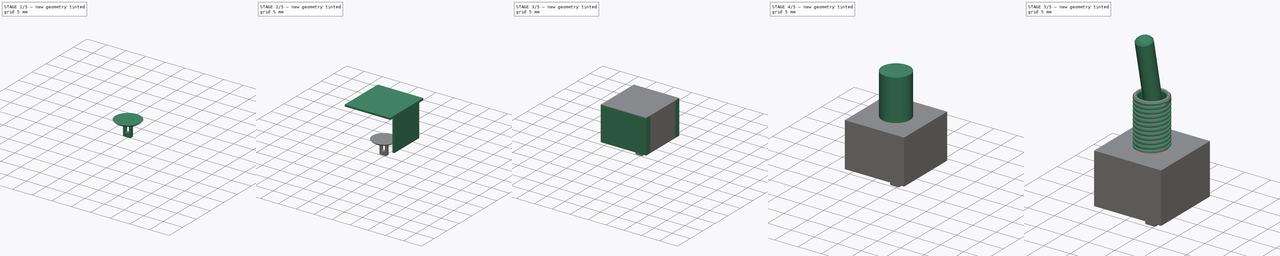
[diagram: build sequence overview — one tinted view per stage of 5, left to right]
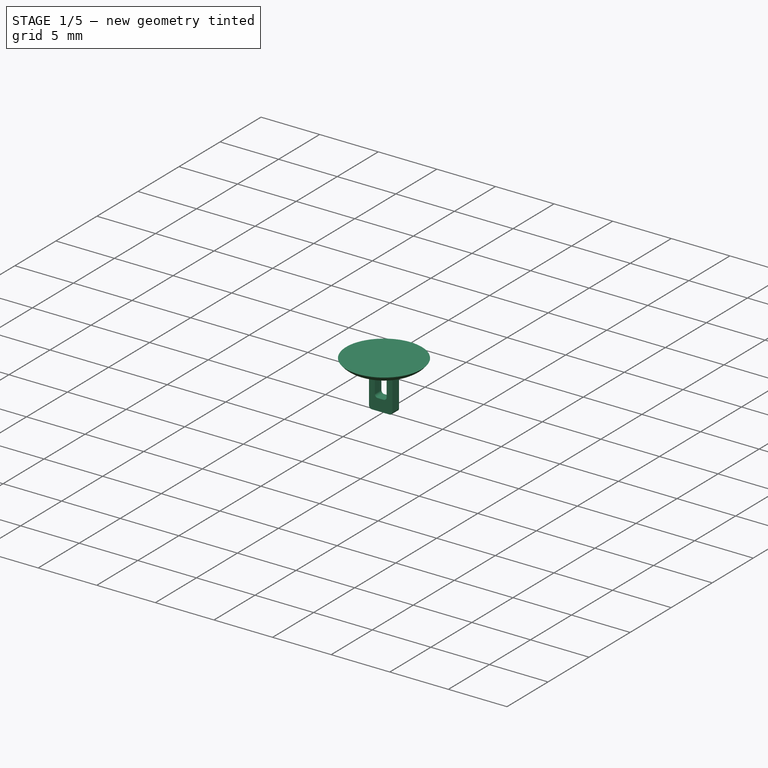
[diagram: stage 1 of 5 — iso view after this stage's code; geometry added in this stage tinted green]
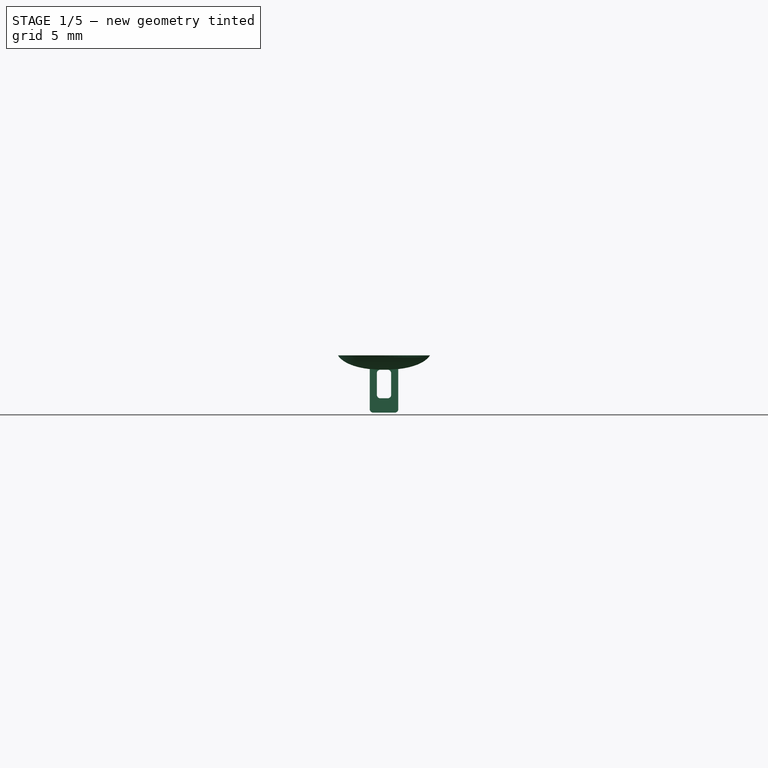
[diagram: stage 1 of 5 — front view after this stage's code; geometry added in this stage tinted green]
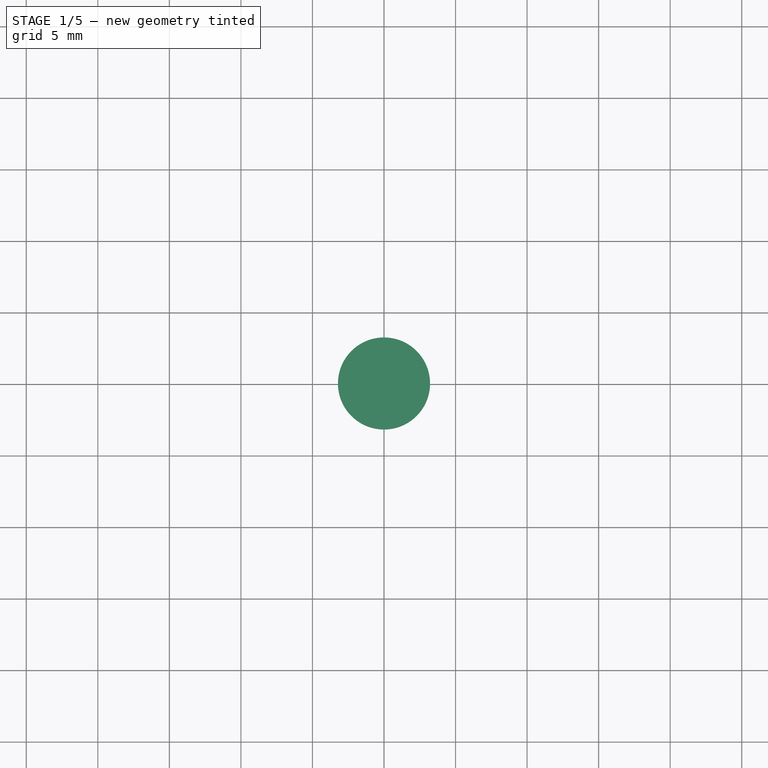
[diagram: stage 1 of 5 — top view after this stage's code; geometry added in this stage tinted green]
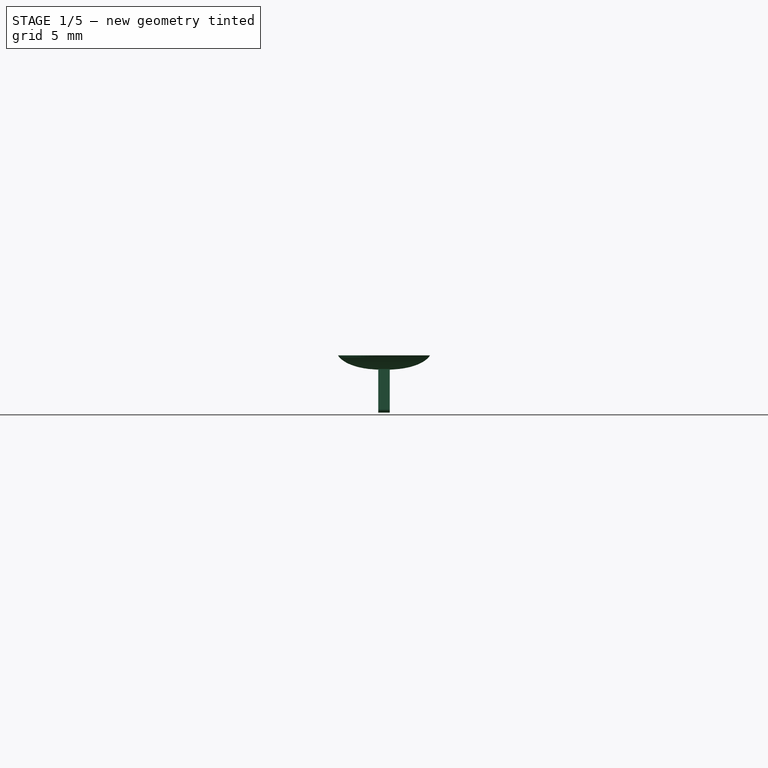
[diagram: stage 1 of 5 — right view after this stage's code; geometry added in this stage tinted green]
FCSTD DOCUMENT  (FreeCAD 0.19R16945 (Git))
Label: Daier MTS 2XX
License: All rights reserved
LicenseURL: http://en.wikipedia.org/wiki/All_rights_reserved
objects: Sketcher::SketchObject×11, PartDesign::Body×8, PartDesign::Pad×6, PartDesign::Revolution×2, PartDesign::ShapeBinder×2, PartDesign::Pocket×2, PartDesign::Mirrored×2, PartDesign::FeatureBase×2, PartDesign::Thickness×1, PartDesign::Chamfer×1, Part::Helix×1, PartDesign::SubtractivePipe×1, PartDesign::Fillet×1
note: 51 computed .brp shape members not serialized (recipe doc carries the construction recipe); baked Part::Feature solids carry a one-line shape summary decoded from their .brp

FEATURE [PartDesign::Body] Body003  label="Bracket"
  Group = -> [Sketch006,Pad002,Sketch007,Pad003,Sketch008,Pad004]
  Origin = -> Origin003
  Tip = -> Pad004
FEATURE [Sketcher::SketchObject] Sketch009
  MapMode = 5
  Placement = pos=(0,0,0) rot=(1,0,0;1.5708rad)
  Support = -> [XZ_Plane004]
  sketch-geometry (8):
    g0: LineSegment StartX=-1 StartY=0 StartZ=0 EndX=1 EndY=0 EndZ=0
    g1: LineSegment StartX=1 StartY=0 StartZ=0 EndX=1 EndY=-4 EndZ=0
    g2: LineSegment StartX=1 StartY=-4 StartZ=0 EndX=-1 EndY=-4 EndZ=0
    g3: LineSegment StartX=-1 StartY=-4 StartZ=0 EndX=-1 EndY=0 EndZ=0
    g4: LineSegment StartX=-0.5 StartY=-1 StartZ=0 EndX=0.5 EndY=-1 EndZ=0
    g5: LineSegment StartX=0.5 StartY=-1 StartZ=0 EndX=0.5 EndY=-3 EndZ=0
    g6: LineSegment StartX=0.5 StartY=-3 StartZ=0 EndX=-0.5 EndY=-3 EndZ=0
    g7: LineSegment StartX=-0.5 StartY=-3 StartZ=0 EndX=-0.5 EndY=-1 EndZ=0
  constraints (22):
    c: Coincident(g0,g1)
    c: Coincident(g1,g2)
    c: Coincident(g2,g3)
    c: Coincident(g3,g0)
    c: Horizontal(g0)
    c: Vertical(g1)
    c: Vertical(g3)
    c: PointOnObject(g0,g-1)
    c: Symmetric(g1,g2,g-2)
    c: DistanceX(g2,g2) = 2
    c: DistanceY(g1,g1) = 4
    c: Coincident(g4,g5)
    c: Coincident(g5,g6)
    c: Coincident(g6,g7)
    c: Coincident(g7,g4)
    c: Horizontal(g6)
    c: Vertical(g5)
    c: Vertical(g7)
    c: Symmetric(g4,g4,g-2)
    c: DistanceX(g6,g6) = 1
    c: DistanceY(g1,g5) = 1
    c: DistanceY(g5,g5) = 2
FEATURE [PartDesign::Pad] Pad005
  Length = 0.8
  Length2 = 100
  Midplane = true
  Placement = pos=(0,0,0) rot=(1,0,0;1.5708rad)
  Profile = -> Sketch009
  Type = 0
FEATURE [PartDesign::Fillet] Fillet002
  Base = -> Pad005 [Edge8,Edge5,Edge20,Edge14,Edge13,Edge17]
  BaseFeature = -> Pad005
  Placement = pos=(0,0,0) rot=(1,0,0;1.5708rad)
  Radius = 0.25
FEATURE [PartDesign::Body] Body005
  Group = -> [Clone]
  Origin = -> Origin005
  Placement = pos=(0,4.7,0) rot=(0,0,1;0rad)
  Tip = -> Clone
FEATURE [PartDesign::FeatureBase] Clone001
  BaseFeature = -> Body004
FEATURE [PartDesign::Body] Body006
  Group = -> [Clone001]
  Origin = -> Origin006
  Placement = pos=(0,-4.7,0) rot=(0,0,1;0rad)
  Tip = -> Clone001
FEATURE [Sketcher::SketchObject] Sketch010
  MapMode = 5
  Placement = pos=(0,0,0) rot=(1,0,0;1.5708rad)
  Support = -> [XZ_Plane007]
  sketch-geometry (11):
    g0-g4: Circle [constr] x5 (B-spline internal-alignment scaffolding for g5; pole/knot coordinates omitted)
    g5: BSplineCurve PolesCount=5 KnotsCount=3 Degree=3 IsPeriodic=0
    g6: GeomPoint [constr] X=-3.21952 Y=0 Z=0
    g7: GeomPoint [constr] X=-1.51377 Y=-0.879678 Z=0
    g8: GeomPoint [constr] X=0 Y=-1.00088 Z=0
    g9: LineSegment StartX=-3.21952 StartY=0 StartZ=0 EndX=0 EndY=0 EndZ=0
    g10: LineSegment StartX=0 StartY=0 StartZ=0 EndX=0 EndY=-1.00088 EndZ=0
  constraints (13):
    c: Radius(g0) = 0.2
    c: Equal(g0, g1-g4) x4
    c: PointOnObject(g5,g3)
    c: InternalAlignment(g0-g4 -> g5) x5
    c: InternalAlignment(g6,g5)
    c: InternalAlignment(g7,g5)
    c: InternalAlignment(g8,g5)
    c: Coincident(g9,g5)
    c: Coincident(g9,g-1)
    c: Horizontal(g9)
    c: Coincident(g10,g9)
    c: Coincident(g10,g5)
    c: Vertical(g10)
FEATURE [PartDesign::Revolution] Revolution001
  Angle = 360
  Axis = (0,2e-16,1)
  Base = (0,0,0)
  Placement = pos=(0,0,0) rot=(1,0,0;1.5708rad)
  Profile = -> Sketch010
  ReferenceAxis = -> Sketch010 [V_Axis]
FEATURE [PartDesign::Body] Body007
  Group = -> [Sketch010,Revolution001]
  Origin = -> Origin007
  Tip = -> Revolution001
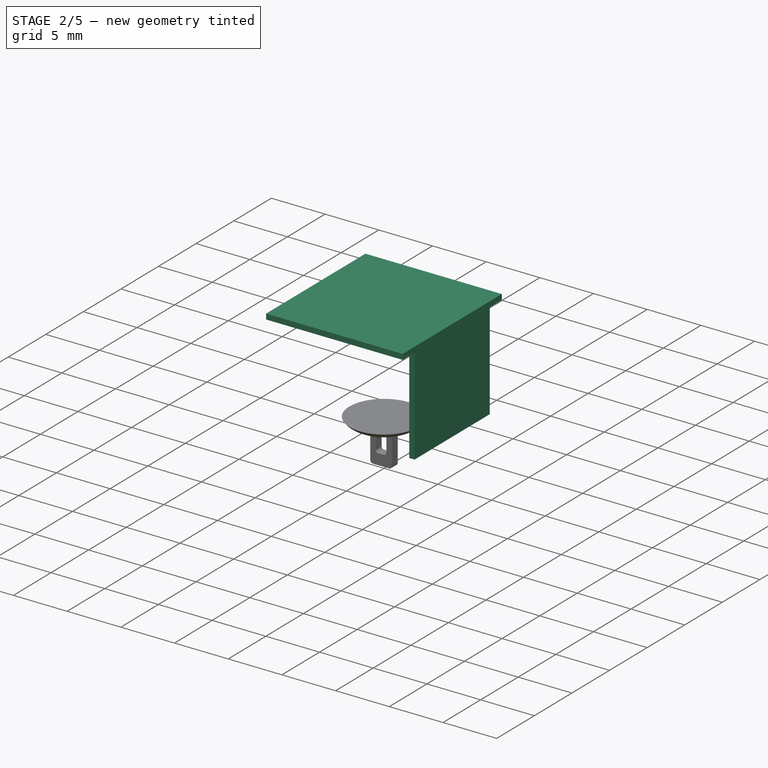
[diagram: stage 2 of 5 — iso view after this stage's code; geometry added in this stage tinted green]
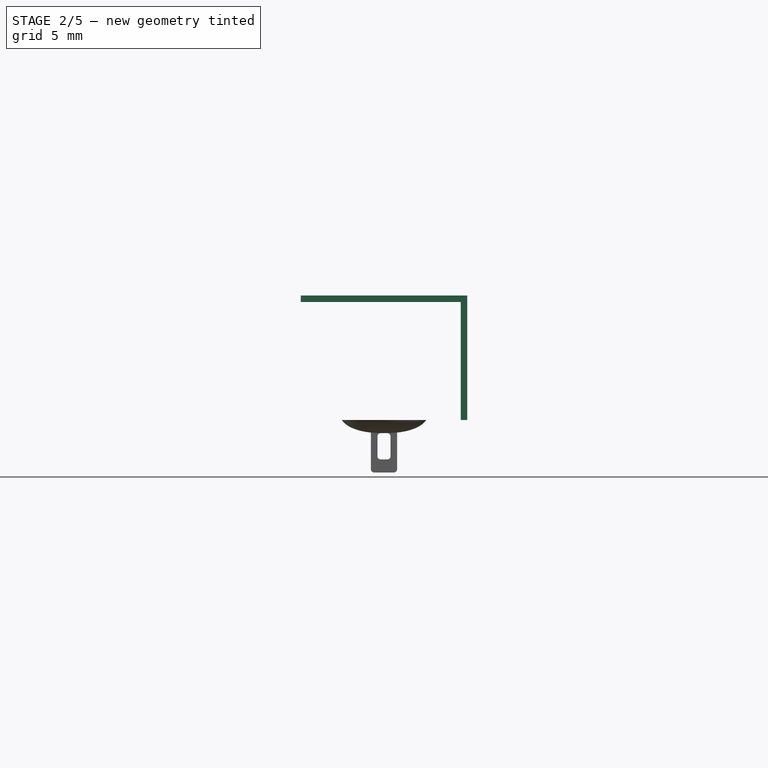
[diagram: stage 2 of 5 — front view after this stage's code; geometry added in this stage tinted green]
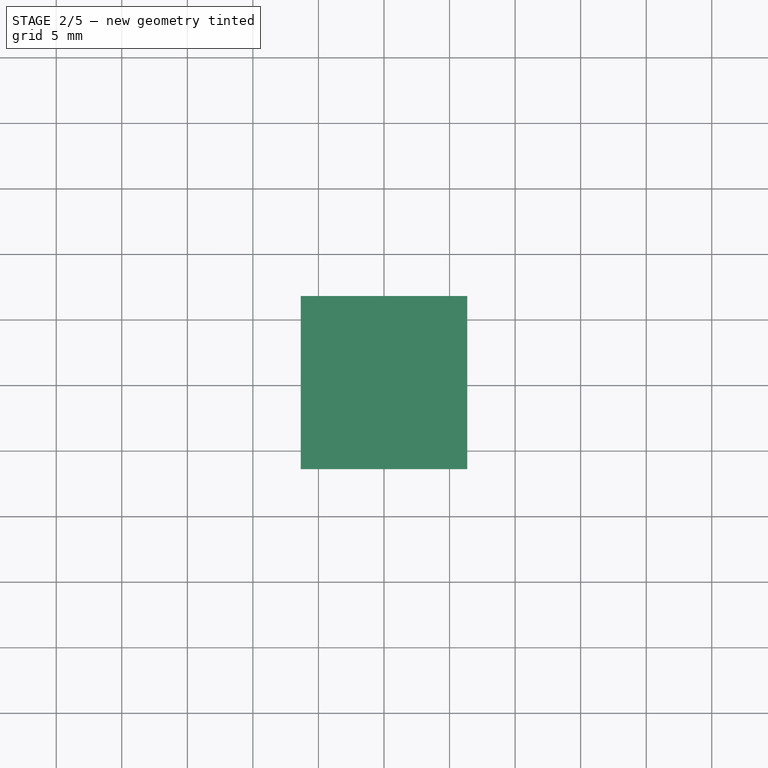
[diagram: stage 2 of 5 — top view after this stage's code; geometry added in this stage tinted green]
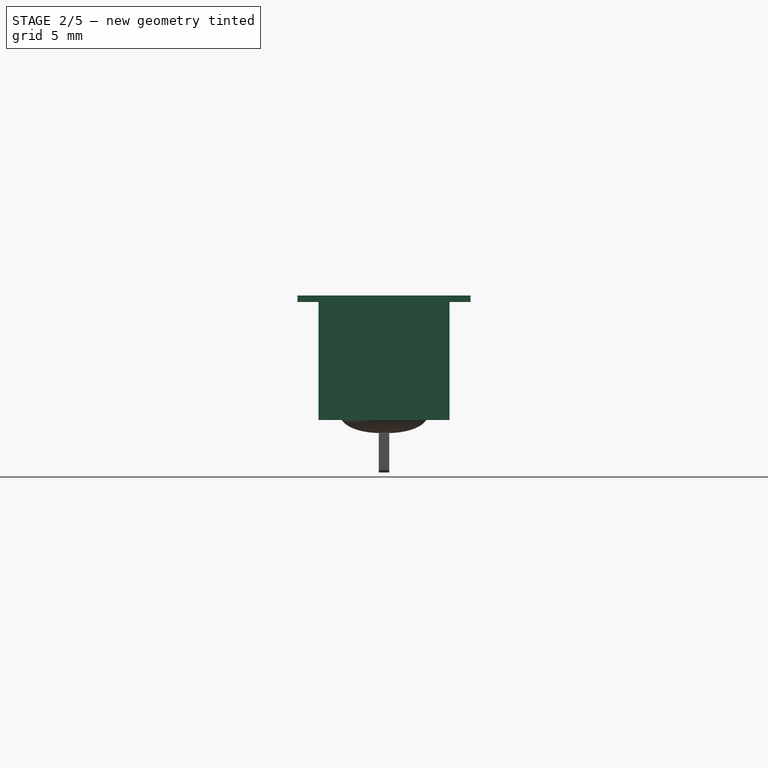
[diagram: stage 2 of 5 — right view after this stage's code; geometry added in this stage tinted green]
FEATURE [PartDesign::Body] Body
  Group = -> [Sketch,Pad,Sketch004,Pocket,Mirrored,ShapeBinder001,Sketch005,Pocket001,Mirrored001]
  Origin = -> Origin
  Tip = -> Mirrored001
FEATURE [Sketcher::SketchObject] Sketch006
  AttachmentOffset = pos=(0,0,6.35) rot=(0,0,1;0rad)
  MapMode = 5
  Placement = pos=(6.35,-1.4e-15,1.4e-15) rot=(0.57735,0.57735,0.57735;2.0944rad)
  Support = -> [YZ_Plane003]
  sketch-geometry (4):
    g0: LineSegment StartX=-5 StartY=0 StartZ=0 EndX=5 EndY=1e-16 EndZ=0
    g1: LineSegment StartX=5 StartY=1e-16 StartZ=0 EndX=5 EndY=9.5 EndZ=0
    g2: LineSegment StartX=5 StartY=9.5 StartZ=0 EndX=-5 EndY=9.5 EndZ=0
    g3: LineSegment StartX=-5 StartY=9.5 StartZ=0 EndX=-5 EndY=0 EndZ=0
  constraints (11):
    c: Coincident(g0,g1)
    c: Coincident(g1,g2)
    c: Coincident(g2,g3)
    c: Coincident(g3,g0)
    c: Horizontal(g2)
    c: Vertical(g1)
    c: Vertical(g3)
    c: PointOnObject(g0,g-1)
    c: Symmetric(g0,g0,g-2)
    c: DistanceX(g0,g0) = 10
    c: DistanceY(g1,g1) = 9.5
FEATURE [PartDesign::Pad] Pad002
  Length = 0.5
  Length2 = 100
  Placement = pos=(0,0,0) rot=(0.57735,0.57735,0.57735;2.0944rad)
  Profile = -> Sketch006
  Reversed = true
  Type = 0
FEATURE [Sketcher::SketchObject] Sketch007
  AttachmentOffset = pos=(0,0,9.5) rot=(0,0,1;0rad)
  MapMode = 5
  Placement = pos=(0,0,9.5) rot=(0,0,1;0rad)
  Support = -> [XY_Plane003]
  sketch-geometry (4):
    g0: LineSegment StartX=-6.35 StartY=6.6 StartZ=0 EndX=6.35 EndY=6.6 EndZ=0
    g1: LineSegment StartX=6.35 StartY=6.6 StartZ=0 EndX=6.35 EndY=-6.6 EndZ=0
    g2: LineSegment StartX=6.35 StartY=-6.6 StartZ=0 EndX=-6.35 EndY=-6.6 EndZ=0
    g3: LineSegment StartX=-6.35 StartY=-6.6 StartZ=0 EndX=-6.35 EndY=6.6 EndZ=0
  constraints (10):
    c: Coincident(g0,g1)
    c: Coincident(g1,g2)
    c: Coincident(g2,g3)
    c: Coincident(g3,g0)
    c: Horizontal(g2)
    c: Vertical(g3)
    c: Symmetric(g0,g0,g-2)
    c: DistanceX(g0,g0) = 12.7
    c: Symmetric(g1,g0,g-1)
    c: DistanceY(g1,g1) = 13.2
FEATURE [PartDesign::Pad] Pad003
  BaseFeature = -> Pad002
  Length = 0.5
  Length2 = 100
  Placement = pos=(0,0,0) rot=(0.57735,0.57735,0.57735;2.0944rad)
  Profile = -> Sketch007
  Refine = true
  Reversed = true
  Type = 0
FEATURE [PartDesign::Body] Body004  label="Pins"
  Group = -> [Sketch009,Pad005,Fillet002]
  Origin = -> Origin004
  Tip = -> Fillet002
FEATURE [PartDesign::FeatureBase] Clone
  BaseFeature = -> Body004
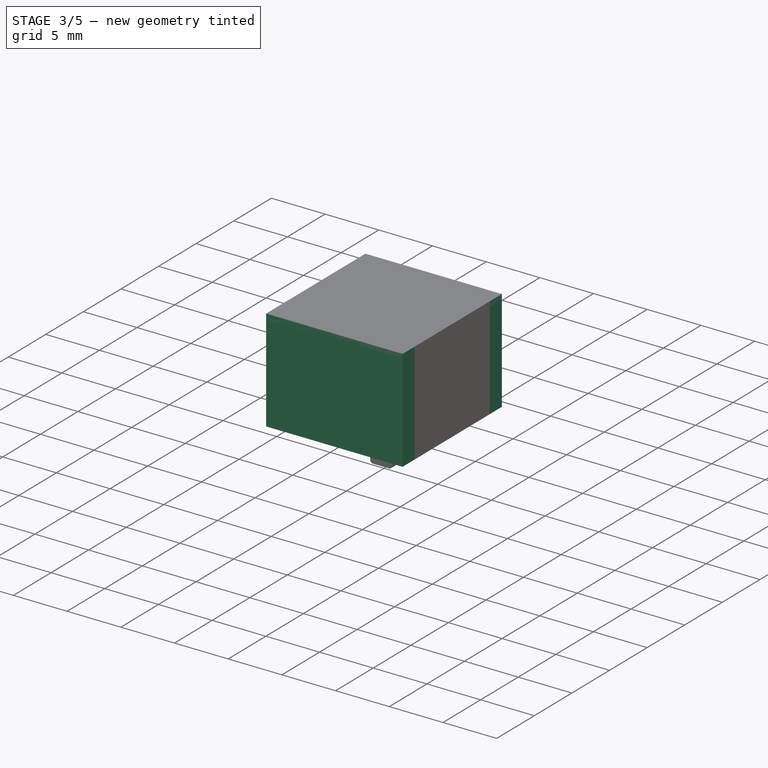
[diagram: stage 3 of 5 — iso view after this stage's code; geometry added in this stage tinted green]
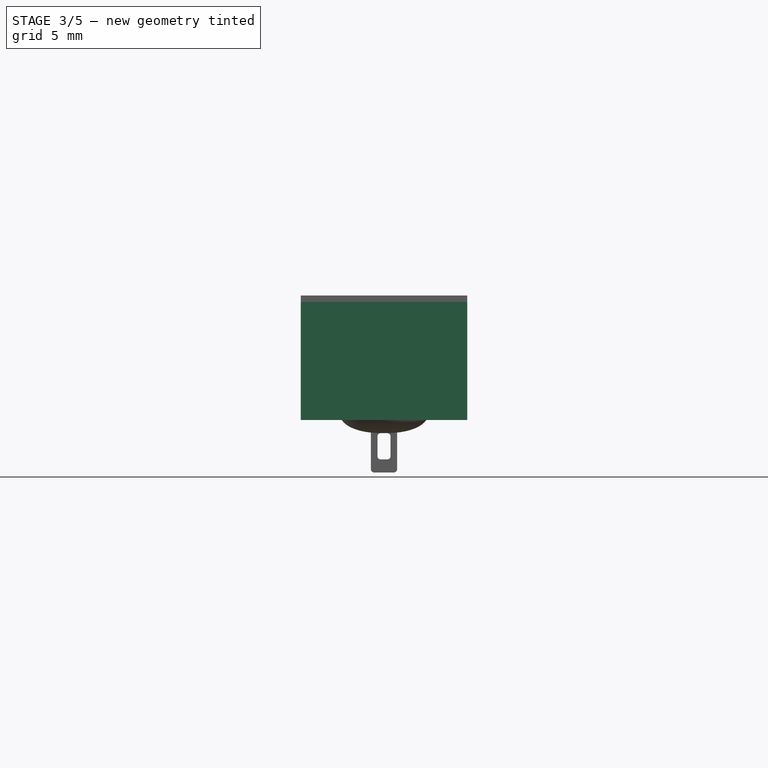
[diagram: stage 3 of 5 — front view after this stage's code; geometry added in this stage tinted green]
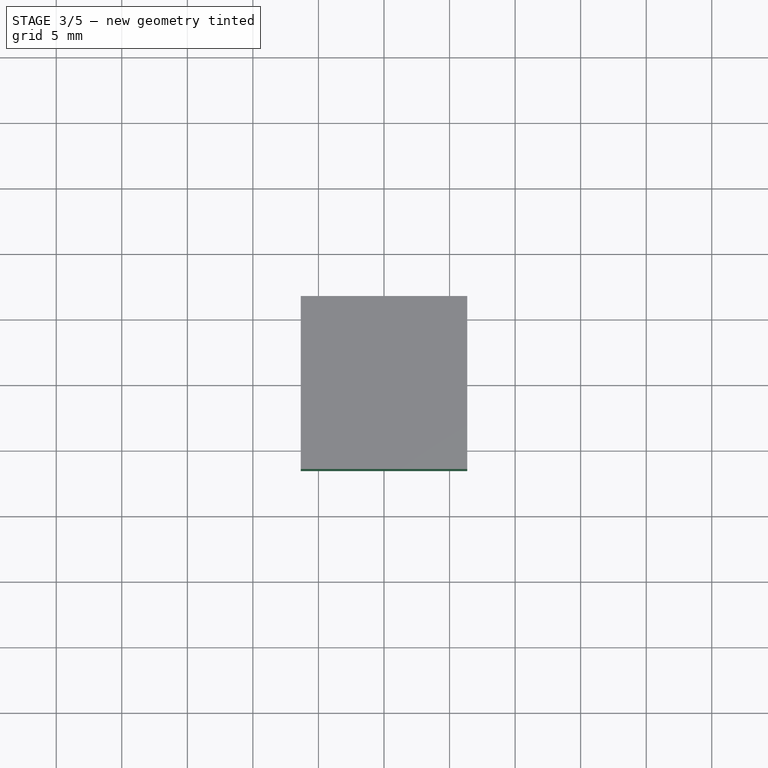
[diagram: stage 3 of 5 — top view after this stage's code; geometry added in this stage tinted green]
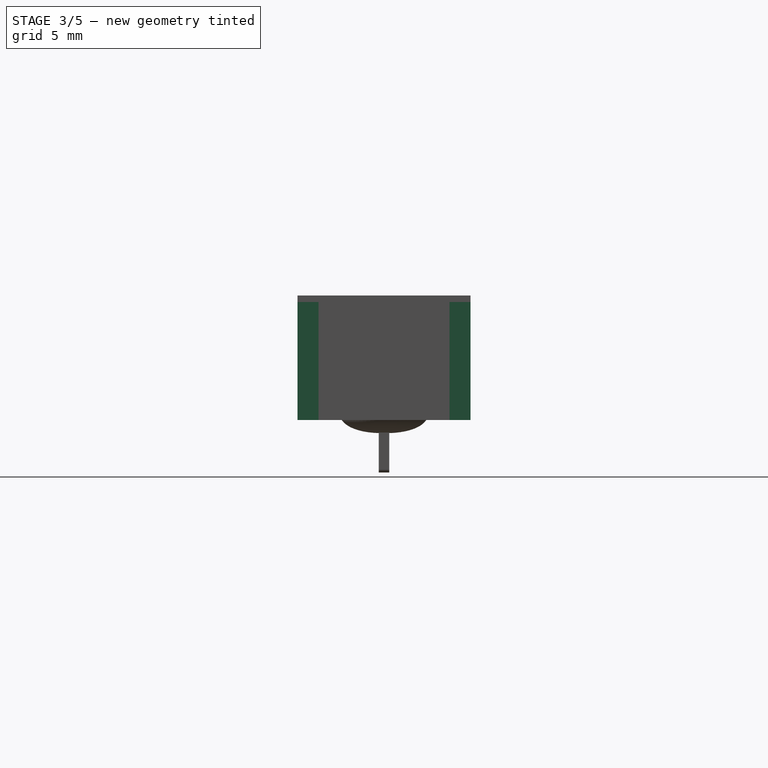
[diagram: stage 3 of 5 — right view after this stage's code; geometry added in this stage tinted green]
FEATURE [Sketcher::SketchObject] Sketch
  MapMode = 5
  Support = -> [XY_Plane]
  sketch-geometry (4):
    g0: LineSegment StartX=-6.35 StartY=6.6 StartZ=0 EndX=6.35 EndY=6.6 EndZ=0
    g1: LineSegment StartX=6.35 StartY=6.6 StartZ=0 EndX=6.35 EndY=-6.6 EndZ=0
    g2: LineSegment StartX=6.35 StartY=-6.6 StartZ=0 EndX=-6.35 EndY=-6.6 EndZ=0
    g3: LineSegment StartX=-6.35 StartY=-6.6 StartZ=0 EndX=-6.35 EndY=6.6 EndZ=0
  constraints (10):
    c: Coincident(g0,g1)
    c: Coincident(g1,g2)
    c: Coincident(g2,g3)
    c: Coincident(g3,g0)
    c: Horizontal(g2)
    c: Vertical(g3)
    c: DistanceX(g0,g0) = 12.7
    c: DistanceY(g1,g1) = 13.2
    c: Symmetric(g0,g1,g-1)
    c: Symmetric(g0,g0,g-2)
FEATURE [PartDesign::Pad] Pad
  Length = 9.5
  Length2 = 100
  Profile = -> Sketch
  Type = 0
FEATURE [PartDesign::Body] Body001  label="Shaft"
  Group = -> [Sketch001,Pad001,Thickness,Chamfer,Sketch003,ShapeBinder,SubtractivePipe]
  Origin = -> Origin001
  Tip = -> SubtractivePipe
FEATURE [Sketcher::SketchObject] Sketch004
  AttachmentOffset = pos=(0,0,6.35) rot=(0,0,1;0rad)
  MapMode = 5
  Placement = pos=(6.35,-1.4e-15,1.4e-15) rot=(0.57735,0.57735,0.57735;2.0944rad)
  Support = -> [YZ_Plane]
  sketch-geometry (4):
    g0: LineSegment StartX=-5 StartY=0 StartZ=0 EndX=5 EndY=0 EndZ=0
    g1: LineSegment StartX=5 StartY=0 StartZ=0 EndX=5 EndY=9.5 EndZ=0
    g2: LineSegment StartX=5 StartY=9.5 StartZ=0 EndX=-5 EndY=9.5 EndZ=0
    g3: LineSegment StartX=-5 StartY=9.5 StartZ=0 EndX=-5 EndY=0 EndZ=0
  constraints (11):
    c: Coincident(g0,g1)
    c: Coincident(g1,g2)
    c: Coincident(g2,g3)
    c: Coincident(g3,g0)
    c: Horizontal(g2)
    c: Vertical(g1)
    c: Vertical(g3)
    c: PointOnObject(g0,g-1)
    c: Symmetric(g0,g0,g-2)
    c: DistanceY(g0,g1) = 9.5
    c: DistanceX(g2,g2) = 10
FEATURE [PartDesign::Pocket] Pocket
  BaseFeature = -> Pad
  Length = 0.5
  Length2 = 100
  Profile = -> Sketch004
  Type = 0
FEATURE [PartDesign::Mirrored] Mirrored
  BaseFeature = -> Pocket
  MirrorPlane = -> YZ_Plane
  Originals = -> [Pocket]
FEATURE [Sketcher::SketchObject] Sketch008
  AttachmentOffset = pos=(0,0,-6.35) rot=(0,0,1;0rad)
  MapMode = 5
  Placement = pos=(-6.35,1.4e-15,-1.4e-15) rot=(0.57735,0.57735,0.57735;2.0944rad)
  Support = -> [YZ_Plane003]
  expr: Constraints[10] = Sketch006.Constraints[10]
  expr: Constraints[9] = Sketch006.Constraints[9]
  sketch-geometry (4):
    g0: LineSegment StartX=-5 StartY=0 StartZ=0 EndX=5 EndY=1e-16 EndZ=0
    g1: LineSegment StartX=5 StartY=1e-16 StartZ=0 EndX=5 EndY=9.5 EndZ=0
    g2: LineSegment StartX=5 StartY=9.5 StartZ=0 EndX=-5 EndY=9.5 EndZ=0
    g3: LineSegment StartX=-5 StartY=9.5 StartZ=0 EndX=-5 EndY=0 EndZ=0
  constraints (11):
    c: Coincident(g0,g1)
    c: Coincident(g1,g2)
    c: Coincident(g2,g3)
    c: Coincident(g3,g0)
    c: Horizontal(g2)
    c: Vertical(g1)
    c: Vertical(g3)
    c: PointOnObject(g0,g-1)
    c: Symmetric(g0,g0,g-2)
    c: DistanceX(g0,g0) = 10
    c: DistanceY(g1,g1) = 9.5
FEATURE [PartDesign::Pad] Pad004
  BaseFeature = -> Pad003
  Length = 0.5
  Length2 = 100
  Placement = pos=(0,0,0) rot=(0.57735,0.57735,0.57735;2.0944rad)
  Profile = -> Sketch008
  Refine = true
  Type = 0
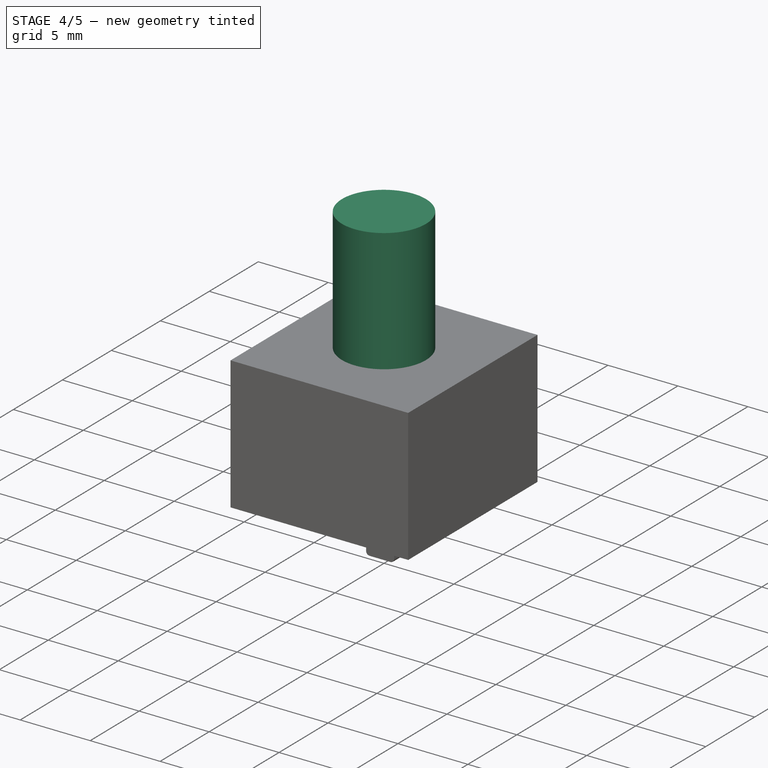
[diagram: stage 4 of 5 — iso view after this stage's code; geometry added in this stage tinted green]
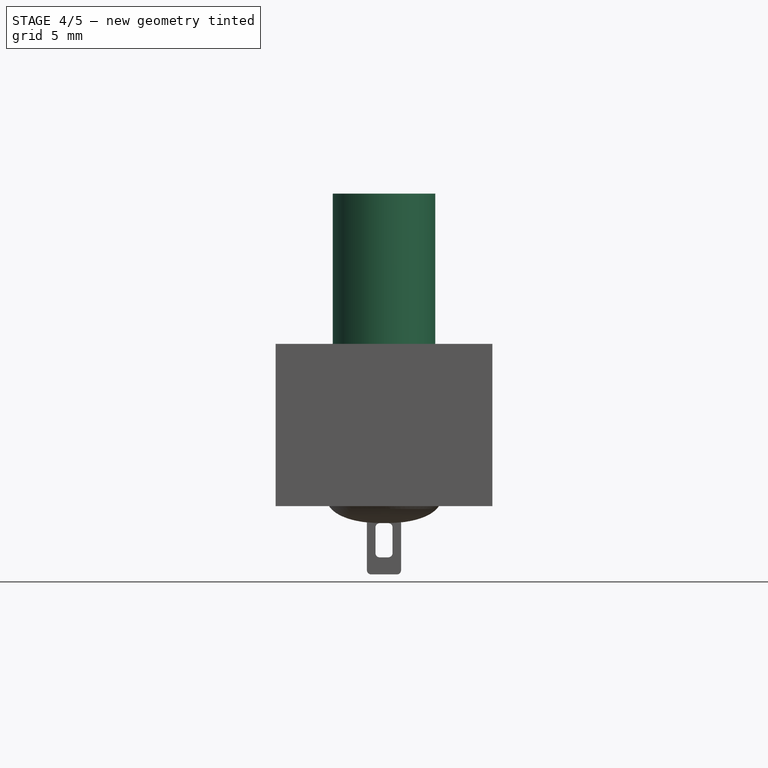
[diagram: stage 4 of 5 — front view after this stage's code; geometry added in this stage tinted green]
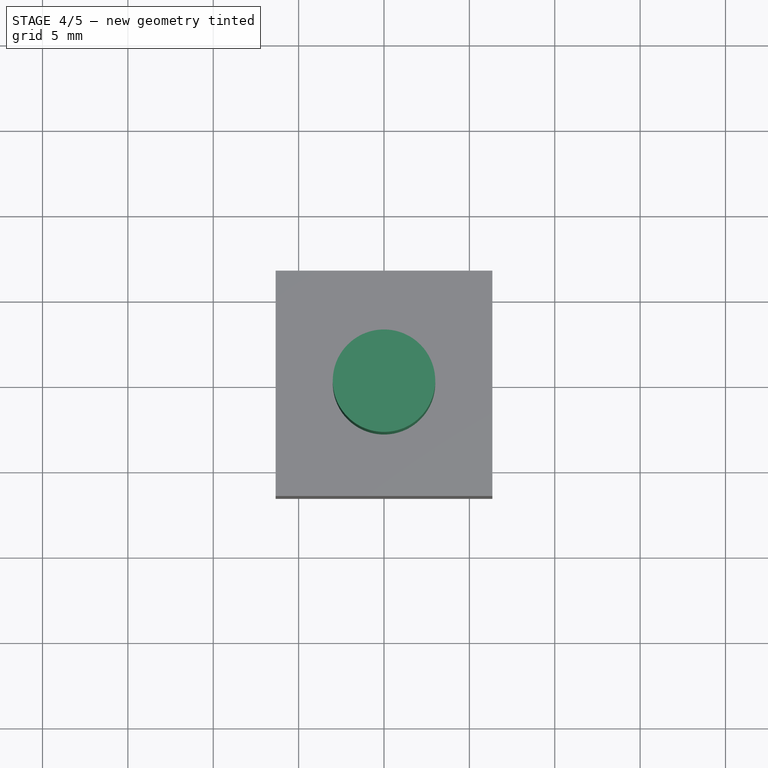
[diagram: stage 4 of 5 — top view after this stage's code; geometry added in this stage tinted green]
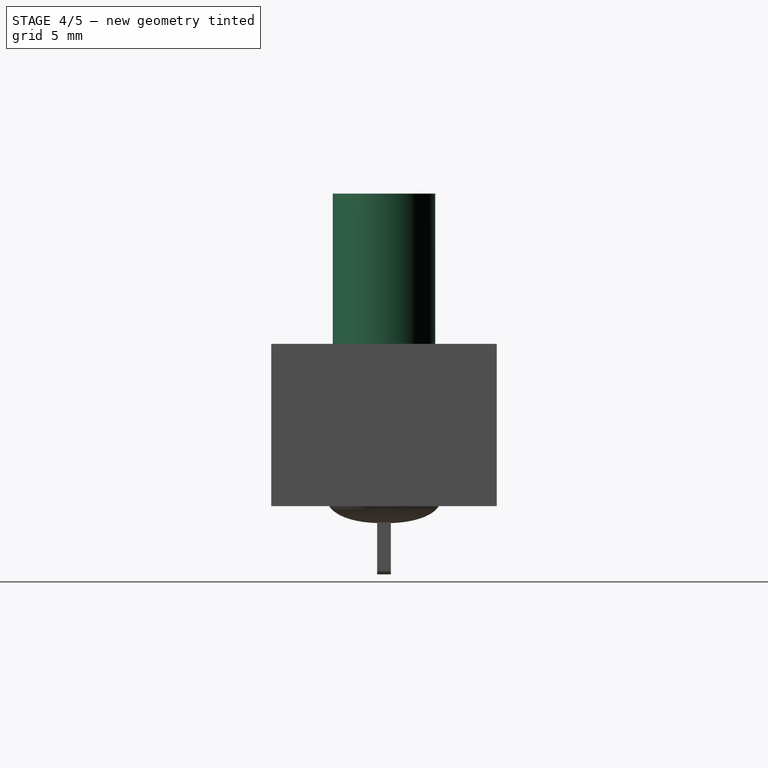
[diagram: stage 4 of 5 — right view after this stage's code; geometry added in this stage tinted green]
FEATURE [Sketcher::SketchObject] Sketch001
  AttachmentOffset = pos=(0,0,9.5) rot=(0,0,1;1.5708rad)
  MapMode = 5
  Placement = pos=(0,0,9.5) rot=(0,0,1;1.5708rad)
  Support = -> [XY_Plane001]
  sketch-geometry (1):
    g0: Circle CenterX=0 CenterY=0 CenterZ=0 NormalX=0 NormalY=0 NormalZ=1 AngleXU=0 Radius=3
  constraints (2):
    c: Coincident(g0,g-1)
    c: Radius(g0) = 3
FEATURE [PartDesign::Pad] Pad001
  Length = 8.8
  Length2 = 100
  Profile = -> Sketch001
  Type = 0
FEATURE [PartDesign::ShapeBinder] ShapeBinder001
  Support = -> [Mirrored]
  TraceSupport = false
FEATURE [Sketcher::SketchObject] Sketch005
  AttachmentOffset = pos=(0,0,9.5) rot=(0,0,1;0rad)
  ExternalGeometry = -> [ShapeBinder001]
  MapMode = 5
  Placement = pos=(0,0,9.5) rot=(0,0,1;0rad)
  Support = -> [XY_Plane]
  sketch-geometry (8):
    g0: LineSegment StartX=-6.35 StartY=6.6 StartZ=0 EndX=6.35 EndY=6.6 EndZ=0
    g1: LineSegment StartX=6.35 StartY=6.6 StartZ=0 EndX=6.35 EndY=5 EndZ=0
    g2: LineSegment StartX=6.35 StartY=5 StartZ=0 EndX=5.85 EndY=5 EndZ=0
    g3: LineSegment StartX=5.85 StartY=5 StartZ=0 EndX=5.85 EndY=0 EndZ=0
    g4: LineSegment StartX=5.85 StartY=0 StartZ=0 EndX=-5.85 EndY=0 EndZ=0
    g5: LineSegment StartX=-5.85 StartY=0 StartZ=0 EndX=-5.85 EndY=5 EndZ=0
    g6: LineSegment StartX=-5.85 StartY=5 StartZ=0 EndX=-6.35 EndY=5 EndZ=0
    g7: LineSegment StartX=-6.35 StartY=5 StartZ=0 EndX=-6.35 EndY=6.6 EndZ=0
  constraints (18):
    c: Coincident(g0,g-4)
    c: Coincident(g0,g-8)
    c: Coincident(g1,g0)
    c: Coincident(g1,g-8)
    c: Coincident(g2,g1)
    c: Coincident(g2,g-7)
    c: Coincident(g3,g2)
    c: PointOnObject(g3,g-7)
    c: Coincident(g4,g3)
    c: PointOnObject(g4,g-6)
    c: Horizontal(g4)
    c: Coincident(g5,g4)
    c: Coincident(g5,g-6)
    c: Coincident(g6,g5)
    c: Coincident(g6,g-5)
    c: Coincident(g7,g6)
    c: Coincident(g7,g0)
    c: PointOnObject(g3,g-1)
FEATURE [PartDesign::Pocket] Pocket001
  BaseFeature = -> Mirrored
  Length = 0.5
  Length2 = 100
  Profile = -> Sketch005
  Type = 0
FEATURE [PartDesign::Mirrored] Mirrored001
  BaseFeature = -> Pocket001
  MirrorPlane = -> XZ_Plane
  Originals = -> [Pocket001]
  Refine = true
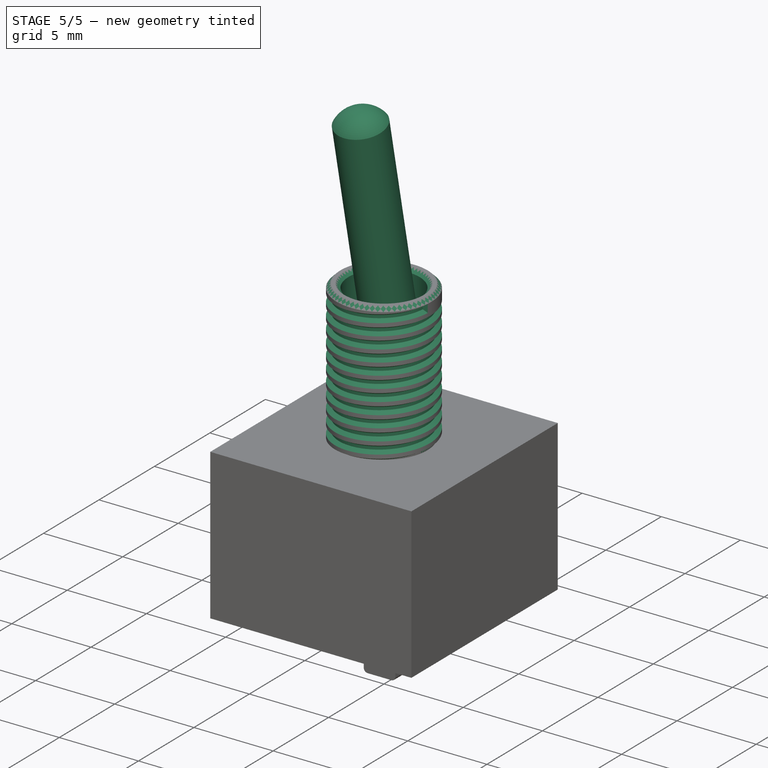
[diagram: stage 5 of 5 — iso view after this stage's code; geometry added in this stage tinted green]
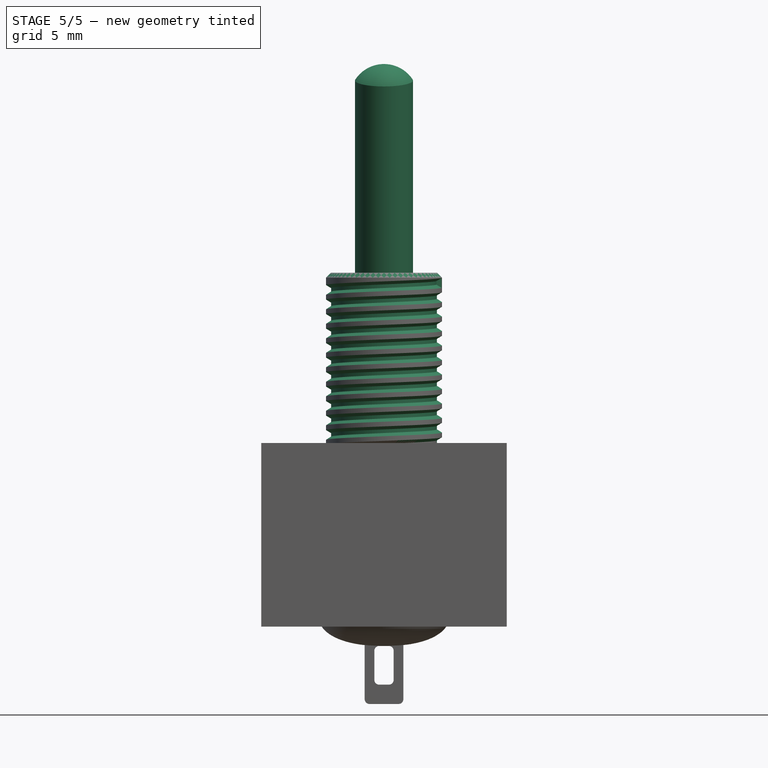
[diagram: stage 5 of 5 — front view after this stage's code; geometry added in this stage tinted green]
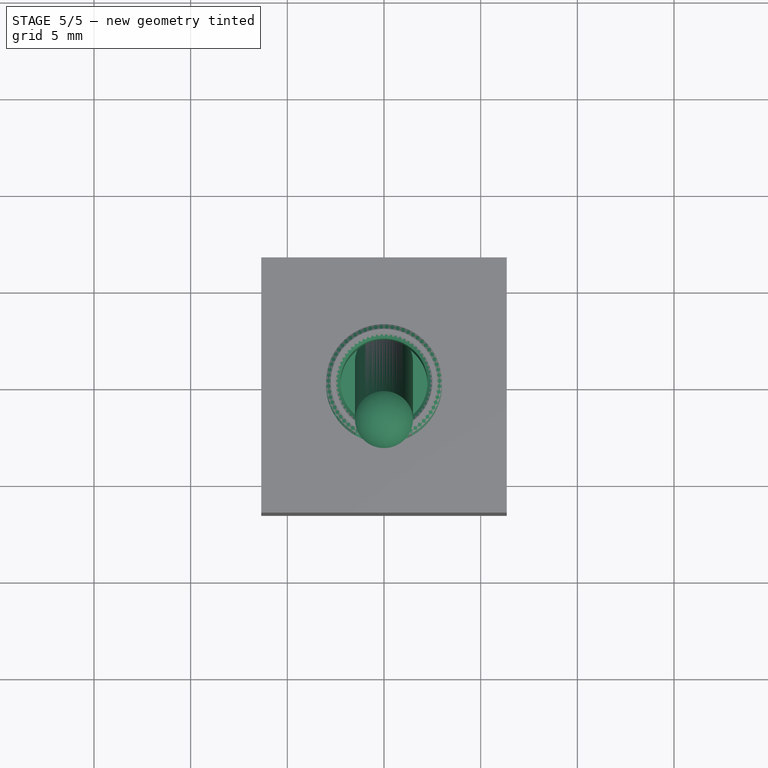
[diagram: stage 5 of 5 — top view after this stage's code; geometry added in this stage tinted green]
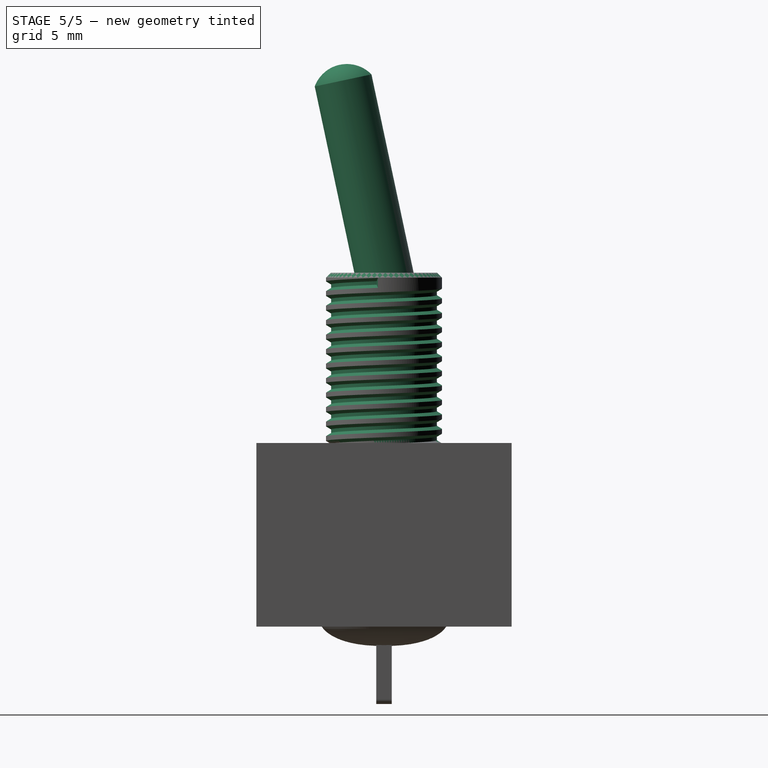
[diagram: stage 5 of 5 — right view after this stage's code; geometry added in this stage tinted green]
FEATURE [PartDesign::Thickness] Thickness
  Base = -> Pad001 [Face3]
  BaseFeature = -> Pad001
  Join = 0
  Mode = 0
  Reversed = true
  Value = 0.75
FEATURE [Sketcher::SketchObject] Sketch002
  AttachmentOffset = pos=(0,18.3,0) rot=(0,0,1;0.20944rad)
  MapMode = 5
  Placement = pos=(-4.1e-15,4.1e-15,18.3) rot=(0.61363,0.496908,0.61363;2.21925rad)
  Support = -> [YZ_Plane002]
  sketch-geometry (7):
    g0: LineSegment StartX=-1.5 StartY=0 StartZ=0 EndX=-1.5 EndY=10.1725 EndZ=0
    g1: ArcOfCircle CenterX=0 CenterY=9.22677 CenterZ=0 NormalX=0 NormalY=0 NormalZ=1 AngleXU=0 Radius=1.77323 StartAngle=1.5708 EndAngle=2.57907
    g2: LineSegment StartX=0 StartY=-1e-06 StartZ=0 EndX=0 EndY=9.22677 EndZ=0
    g3: LineSegment StartX=0 StartY=9.22677 StartZ=0 EndX=1e-16 EndY=11 EndZ=0
    g4: LineSegment StartX=-1.5 StartY=0 StartZ=0 EndX=-1.5 EndY=-5.56978 EndZ=0
    g5: LineSegment StartX=-1.5 StartY=-5.56978 StartZ=0 EndX=0 EndY=-5.56978 EndZ=0
    g6: LineSegment StartX=0 StartY=-5.56978 StartZ=0 EndX=0 EndY=-1e-06 EndZ=0
  constraints (18):
    c: PointOnObject(g0,g-1)
    c: PointOnObject(g1,g-2)
    c: Coincident(g1,g0)
    c: PointOnObject(g1,g-2)
    c: Coincident(g2,g1)
    c: Coincident(g3,g1)
    c: Coincident(g3,g1)
    c: DistanceX(g0,g1) = 1.5
    c: DistanceX(g0,g-1) = 1.5
    c: DistanceY(g-1,g1) = 11
    c: Coincident(g4,g0)
    c: Vertical(g4)
    c: Coincident(g5,g4)
    c: PointOnObject(g5,g-2)
    c: Horizontal(g5)
    c: Coincident(g6,g5)
    c: Coincident(g6,g2)
    c: Vertical(g6)
FEATURE [PartDesign::Revolution] Revolution
  Angle = 360
  Axis = (-2e-16,-0.207912,0.978148)
  Base = (-4.1e-15,4.1e-15,18.3)
  Placement = pos=(0,0,0) rot=(0.57735,0.57735,0.57735;2.0944rad)
  Profile = -> Sketch002
  ReferenceAxis = -> Sketch002 [V_Axis]
  Refine = true
FEATURE [PartDesign::Body] Body002  label="Lever"
  Group = -> [Sketch002,Revolution]
  Origin = -> Origin002
  Tip = -> Revolution
FEATURE [PartDesign::Chamfer] Chamfer
  Base = -> Thickness [Edge4,Edge3]
  BaseFeature = -> Thickness
  Size = 0.25
FEATURE [Sketcher::SketchObject] Sketch003
  AttachmentOffset = pos=(2.85,9.5,1) rot=(0,0,1;0rad)
  MapMode = 5
  Placement = pos=(2.85,-1,9.5) rot=(1,0,0;1.5708rad)
  Support = -> [XZ_Plane001]
  sketch-geometry (5):
    g0: LineSegment StartX=0.185884 StartY=-0.375 StartZ=0 EndX=0.185884 EndY=0.375 EndZ=0
    g1: Circle [constr] CenterX=0 CenterY=0 CenterZ=0 NormalX=0 NormalY=0 NormalZ=1 AngleXU=0 Radius=0.418542
    g2: LineSegment StartX=-0.301256 StartY=0.09375 StartZ=0 EndX=-0.301256 EndY=-0.09375 EndZ=0
    g3: LineSegment StartX=-0.301256 StartY=0.09375 StartZ=0 EndX=0.185884 EndY=0.375 EndZ=0
    g4: LineSegment StartX=-0.301256 StartY=-0.09375 StartZ=0 EndX=0.185884 EndY=-0.375 EndZ=0
  constraints (11):
    c: PointOnObject(g0,g1)
    c: Coincident(g1,g-1)
    c: DistanceY(g0,g0) = 0.75
    c: Coincident(g3,g2)
    c: Coincident(g3,g0)
    c: Coincident(g4,g2)
    c: Coincident(g4,g0)
    c: Angle(g4,g3) = 1.0472
    c: DistanceY(g2,g2) = 0.1875
    c: Symmetric(g2,g2,g-1)
    c: Symmetric(g0,g0,g-1)
FEATURE [Part::Helix] Helix
  Angle = 0
  AttacherType = Attacher::AttachEngine3D
  Height = 8.8
  LocalCoord = 0
  Pitch = 0.75
  Placement = pos=(0,0,9.5) rot=(0,0,1;1.5708rad)
  Radius = 3
  Style = 1
FEATURE [PartDesign::ShapeBinder] ShapeBinder
  Placement = pos=(0,0,9.5) rot=(0,0,1;1.5708rad)
  Support = -> [Helix]
  TraceSupport = false
FEATURE [PartDesign::SubtractivePipe] SubtractivePipe
  AuxilleryCurvelinear = true
  AuxillerySpineTangent = false
  BaseFeature = -> Chamfer
  Binormal = (0,0,0)
  Mode = 2
  Profile = -> Sketch003
  Spine = -> ShapeBinder
  SpineTangent = false
  Transformation = 0
  Transition = 0
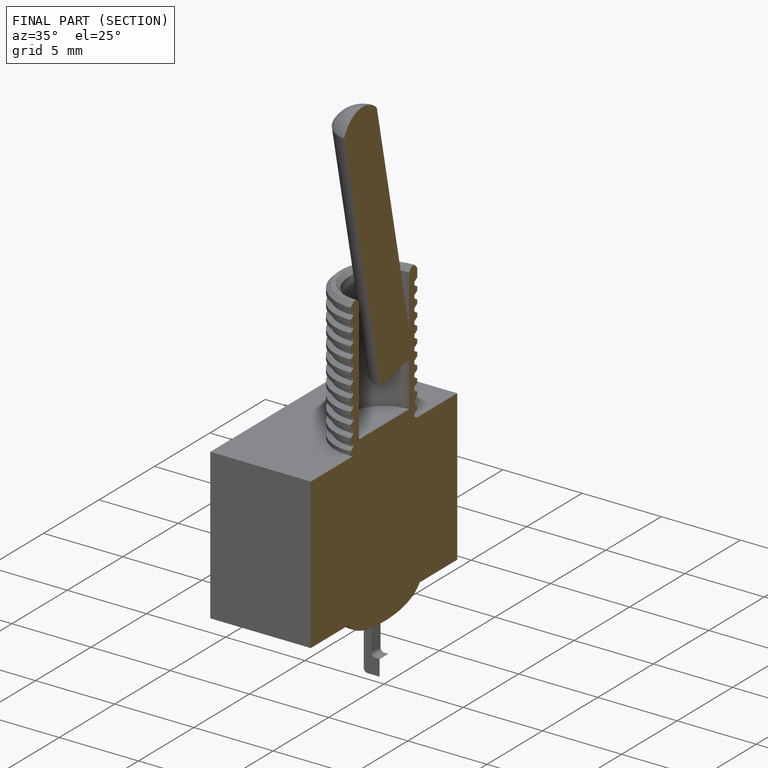
[diagram: finished part — half-section view (interior)]
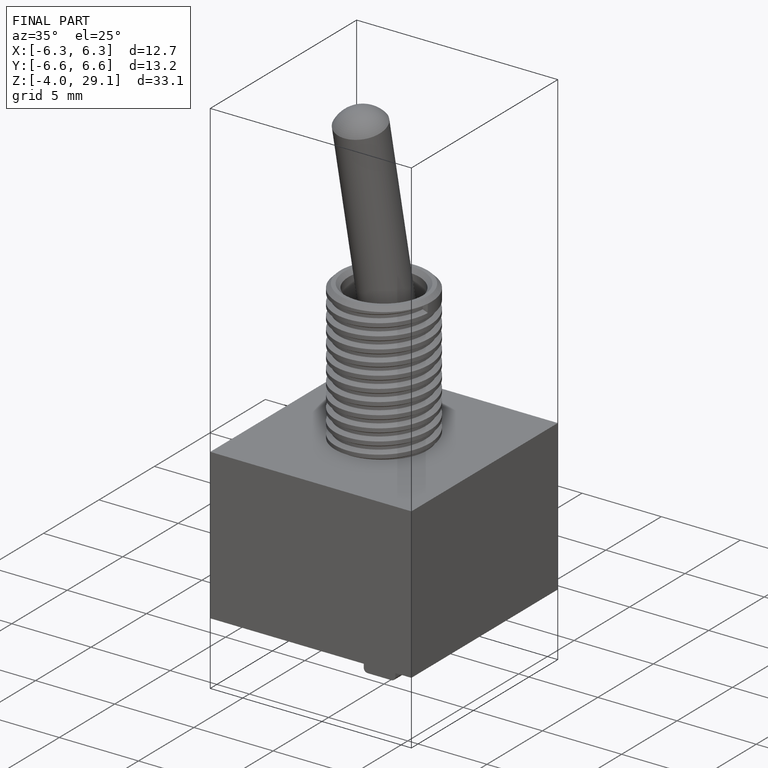
[diagram: finished part — iso view with bounding-box wireframe]
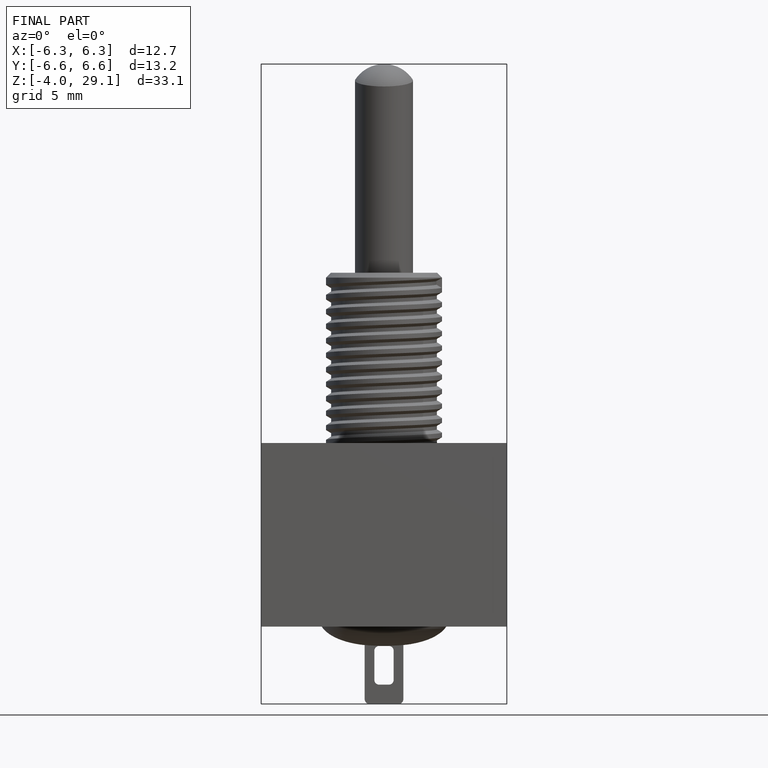
[diagram: finished part — front view with bounding-box wireframe]
